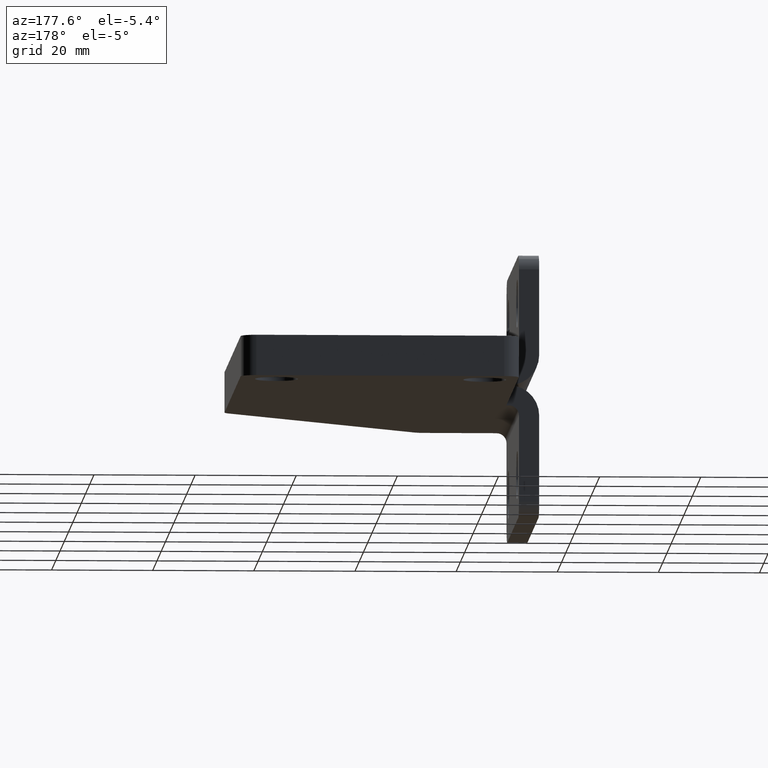
[diagram: clean part render]
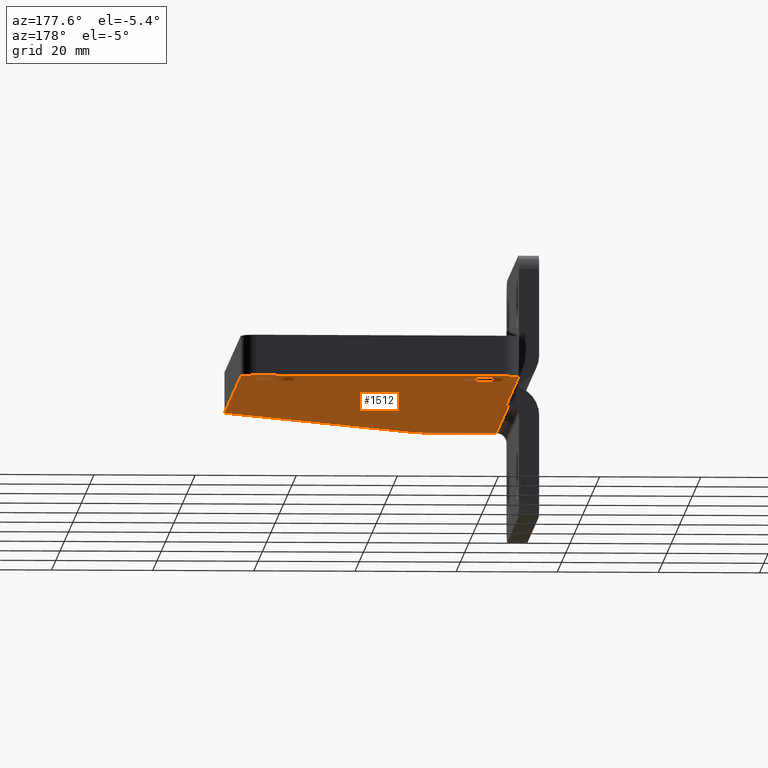
[diagram: same view with one face highlighted and labeled with its STEP entity id]
A machine part, auxiliary view. The second image highlights one B-rep face of the part: STEP entity #1512.
In plain terms, the highlighted face is a freeform B-spline surface patch.
Its self-contained STEP definition (entity closure, byte-faithful):
#322=CARTESIAN_POINT('',(5.947231242079374,107.195288139689040,-4.000000000000001));
#323=VERTEX_POINT('',#322);
#332=CARTESIAN_POINT('',(-2.552768757920624,107.195288139689040,-4.000000000000000));
#333=VERTEX_POINT('',#332);
#334=CARTESIAN_POINT('',(1.697231242079376,107.195288139689040,-4.0));
#335=DIRECTION('',(0.0,0.0,-1.0));
#336=DIRECTION('',(1.0,0.0,0.0));
#337=AXIS2_PLACEMENT_3D('',#334,#335,#336);
#338=CIRCLE('',#337,4.250000000000000);
#339=EDGE_CURVE('',#323,#333,#338,.T.);
#385=CARTESIAN_POINT('',(-35.252768757920620,107.195288139689040,-3.999999999999997));
#386=VERTEX_POINT('',#385);
#395=CARTESIAN_POINT('',(-43.752768757920627,107.195288139689040,-3.999999999999996));
#396=VERTEX_POINT('',#395);
#397=CARTESIAN_POINT('',(-39.502768757920627,107.195288139689040,-3.999999999999996));
#398=DIRECTION('',(0.0,0.0,-1.0));
#399=DIRECTION('',(1.0,0.0,0.0));
#400=AXIS2_PLACEMENT_3D('',#397,#398,#399);
#401=CIRCLE('',#400,4.250000000000000);
#402=EDGE_CURVE('',#386,#396,#401,.T.);
#1312=CARTESIAN_POINT('',(-46.502768757920627,53.695288139689019,-3.999999999999996));
#1313=VERTEX_POINT('',#1312);
#1321=CARTESIAN_POINT('',(-46.502768757920620,-4.804711860310986,-3.999999999999996));
#1322=VERTEX_POINT('',#1321);
#1323=CARTESIAN_POINT('',(-46.502768757920627,53.695288139689019,-3.999999999999996));
#1324=DIRECTION('',(0.0,-1.0,0.0));
#1325=VECTOR('',#1324,58.500000000000007);
#1326=LINE('',#1323,#1325);
#1327=EDGE_CURVE('',#1313,#1322,#1326,.T.);
#1402=CARTESIAN_POINT('',(-46.502768757920627,115.195288139689010,-3.999999999999996));
#1403=CARTESIAN_POINT('',(8.997231242079373,115.195288139689010,-4.000000000000001));
#1404=CARTESIAN_POINT('',(-46.502768757920634,-4.804711860310988,-3.999999999999996));
#1405=CARTESIAN_POINT('',(8.997231242079366,-4.804711860310988,-4.0));
#1406=B_SPLINE_SURFACE_WITH_KNOTS('',1,1,((#1402,#1404),(#1403,#1405)),.UNSPECIFIED.,.F.,.F.,.U.,(2,2),(2,2),(0.0,55.500000000000000),(0.0,120.0),.UNSPECIFIED.);
#1407=ORIENTED_EDGE('',*,*,#1327,.F.);
#1408=CARTESIAN_POINT('',(-46.002768757920627,53.695288139689019,-3.999999999999996));
#1409=VERTEX_POINT('',#1408);
#1410=CARTESIAN_POINT('',(-46.002768757920627,53.695288139689019,-3.999999999999996));
#1411=DIRECTION('',(-1.0,0.0,0.0));
#1412=VECTOR('',#1411,0.500000000000000);
#1413=LINE('',#1410,#1412);
#1414=EDGE_CURVE('',#1409,#1313,#1413,.T.);
#1415=ORIENTED_EDGE('',*,*,#1414,.F.);
#1416=CARTESIAN_POINT('',(-46.002768757920634,112.195288139689000,-3.999999999999996));
#1417=VERTEX_POINT('',#1416);
#1418=CARTESIAN_POINT('',(-46.002768757920627,53.695288139689019,-3.999999999999996));
#1419=DIRECTION('',(0.0,1.0,0.0));
#1420=VECTOR('',#1419,58.499999999999979);
#1421=LINE('',#1418,#1420);
#1422=EDGE_CURVE('',#1409,#1417,#1421,.T.);
#1423=ORIENTED_EDGE('',*,*,#1422,.T.);
#1424=CARTESIAN_POINT('',(-43.002768757920634,115.195288139689010,-3.999999999999996));
#1425=VERTEX_POINT('',#1424);
#1426=CARTESIAN_POINT('',(-43.002768757920634,112.195288139689000,-3.999999999999996));
#1427=DIRECTION('',(0.0,0.0,-1.0));
#1428=DIRECTION('',(0.0,1.0,0.0));
#1429=AXIS2_PLACEMENT_3D('',#1426,#1427,#1428);
#1430=CIRCLE('',#1429,2.999999999999998);
#1431=EDGE_CURVE('',#1417,#1425,#1430,.T.);
#1432=ORIENTED_EDGE('',*,*,#1431,.T.);
#1433=CARTESIAN_POINT('',(5.997231242079364,115.195288139689010,-4.000000000000001));
#1434=VERTEX_POINT('',#1433);
#1435=CARTESIAN_POINT('',(-43.002768757920634,115.195288139689010,-3.999999999999996));
#1436=DIRECTION('',(1.0,0.0,0.0));
#1437=VECTOR('',#1436,49.0);
#1438=LINE('',#1435,#1437);
#1439=EDGE_CURVE('',#1425,#1434,#1438,.T.);
#1440=ORIENTED_EDGE('',*,*,#1439,.T.);
#1441=CARTESIAN_POINT('',(8.997231242079371,112.195288139689000,-4.000000000000001));
#1442=VERTEX_POINT('',#1441);
#1443=CARTESIAN_POINT('',(5.997231242079364,112.195288139689000,-4.000000000000001));
#1444=DIRECTION('',(0.0,0.0,-1.0));
#1445=DIRECTION('',(1.0,0.0,0.0));
#1446=AXIS2_PLACEMENT_3D('',#1443,#1444,#1445);
#1447=CIRCLE('',#1446,2.999999999999998);
#1448=EDGE_CURVE('',#1434,#1442,#1447,.T.);
#1449=ORIENTED_EDGE('',*,*,#1448,.T.);
#1450=CARTESIAN_POINT('',(8.997231242079366,36.437928826808289,-4.000000000000001));
#1451=VERTEX_POINT('',#1450);
#1452=CARTESIAN_POINT('',(8.997231242079371,112.195288139689000,-4.000000000000001));
#1453=DIRECTION('',(0.0,-1.0,0.0));
#1454=VECTOR('',#1453,75.757359312880709);
#1455=LINE('',#1452,#1454);
#1456=EDGE_CURVE('',#1442,#1451,#1455,.T.);
#1457=ORIENTED_EDGE('',*,*,#1456,.T.);
#1458=CARTESIAN_POINT('',(8.118551585639008,34.316608483248643,-4.000000000000001));
#1459=VERTEX_POINT('',#1458);
#1460=CARTESIAN_POINT('',(5.997231242079368,36.437928826808289,-4.000000000000001));
#1461=DIRECTION('',(-4.490643E-017,4.490643E-017,-1.000000000000000));
#1462=DIRECTION('',(0.707106781186547,-0.707106781186548,-6.350728E-017));
#1463=AXIS2_PLACEMENT_3D('',#1460,#1461,#1462);
#1464=CIRCLE('',#1463,3.0);
#1465=EDGE_CURVE('',#1451,#1459,#1464,.T.);
#1466=ORIENTED_EDGE('',*,*,#1465,.T.);
#1467=CARTESIAN_POINT('',(-30.124089101480280,-3.926032203870640,-3.999999999999997));
#1468=VERTEX_POINT('',#1467);
#1469=CARTESIAN_POINT('',(8.118551585639008,34.316608483248643,-4.000000000000001));
#1470=DIRECTION('',(-0.707106781186548,-0.707106781186548,6.568971E-017));
#1471=VECTOR('',#1470,54.083261120685229);
#1472=LINE('',#1469,#1471);
#1473=EDGE_CURVE('',#1459,#1468,#1472,.T.);
#1474=ORIENTED_EDGE('',*,*,#1473,.T.);
#1475=CARTESIAN_POINT('',(-32.245409445039918,-4.804711860310995,-3.999999999999997));
#1476=VERTEX_POINT('',#1475);
#1477=CARTESIAN_POINT('',(-32.245409445039918,-1.804711860310984,-3.999999999999997));
#1478=DIRECTION('',(0.0,0.0,-1.0));
#1479=DIRECTION('',(0.0,-1.0,0.0));
#1480=AXIS2_PLACEMENT_3D('',#1477,#1478,#1479);
#1481=CIRCLE('',#1480,3.000000000000012);
#1482=EDGE_CURVE('',#1468,#1476,#1481,.T.);
#1483=ORIENTED_EDGE('',*,*,#1482,.T.);
#1484=CARTESIAN_POINT('',(-46.502768757920620,-4.804711860310986,-3.999999999999996));
#1485=DIRECTION('',(1.0,0.0,0.0));
#1486=VECTOR('',#1485,14.257359312880702);
#1487=LINE('',#1484,#1486);
#1488=EDGE_CURVE('',#1322,#1476,#1487,.T.);
#1489=ORIENTED_EDGE('',*,*,#1488,.F.);
#1490=EDGE_LOOP('',(#1407,#1415,#1423,#1432,#1440,#1449,#1457,#1466,#1474,#1483,#1489));
#1491=FACE_OUTER_BOUND('',#1490,.T.);
#1492=ORIENTED_EDGE('',*,*,#402,.F.);
#1493=CARTESIAN_POINT('',(-39.502768757920627,107.195288139689040,-3.999999999999996));
#1494=DIRECTION('',(0.0,0.0,-1.0));
#1495=DIRECTION('',(1.0,0.0,0.0));
#1496=AXIS2_PLACEMENT_3D('',#1493,#1494,#1495);
#1497=CIRCLE('',#1496,4.250000000000000);
#1498=EDGE_CURVE('',#396,#386,#1497,.T.);
#1499=ORIENTED_EDGE('',*,*,#1498,.F.);
#1500=EDGE_LOOP('',(#1492,#1499));
#1501=FACE_BOUND('',#1500,.T.);
#1502=ORIENTED_EDGE('',*,*,#339,.F.);
#1503=CARTESIAN_POINT('',(1.697231242079376,107.195288139689040,-4.0));
#1504=DIRECTION('',(0.0,0.0,-1.0));
#1505=DIRECTION('',(1.0,0.0,0.0));
#1506=AXIS2_PLACEMENT_3D('',#1503,#1504,#1505);
#1507=CIRCLE('',#1506,4.250000000000000);
#1508=EDGE_CURVE('',#333,#323,#1507,.T.);
#1509=ORIENTED_EDGE('',*,*,#1508,.F.);
#1510=EDGE_LOOP('',(#1502,#1509));
#1511=FACE_BOUND('',#1510,.T.);
#1512=ADVANCED_FACE('',(#1491,#1501,#1511),#1406,.T.);